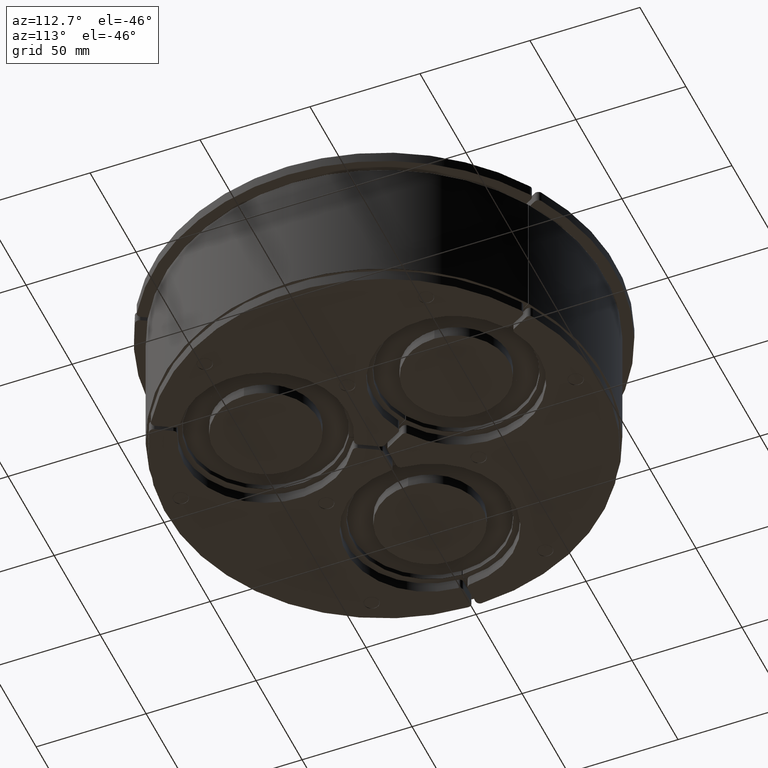
[diagram: clean part render]
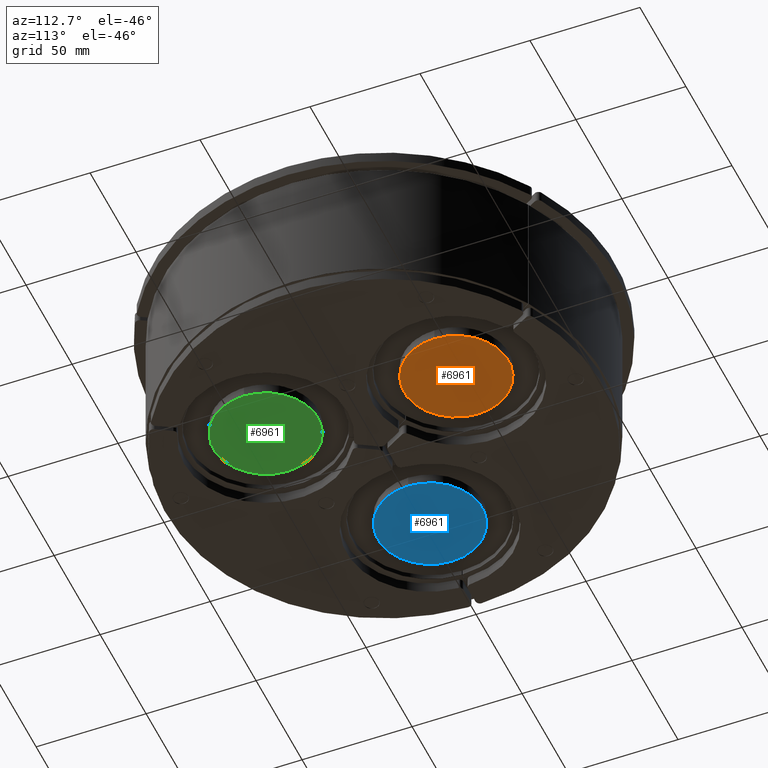
[diagram: same view with three faces highlighted in distinct colors, each labeled with its STEP entity id]
A machine part, auxiliary view with three faces highlighted in distinct colors.
Their STEP definitions:

[orange] entity #6961 — the highlighted planar face has unit normal (0, -0, 1).
#6932=CARTESIAN_POINT('',(23.800000000000004,2.914659E-015,0.0));
#6933=VERTEX_POINT('',#6932);
#6934=CARTESIAN_POINT('',(0.0,0.0,0.0));
#6935=DIRECTION('',(0.0,0.0,-1.0));
#6936=DIRECTION('',(-1.0,0.0,0.0));
#6937=AXIS2_PLACEMENT_3D('',#6934,#6935,#6936);
#6938=CIRCLE('',#6937,23.800000000000004);
#6939=EDGE_CURVE('',#6933,#6933,#6938,.T.);
#6953=CARTESIAN_POINT('',(-1.486836E-015,6.219737E-016,0.0));
#6954=DIRECTION('',(0.0,0.0,1.0));
#6955=DIRECTION('',(1.0,0.0,0.0));
#6956=AXIS2_PLACEMENT_3D('',#6953,#6954,#6955);
#6957=PLANE('',#6956);
#6958=ORIENTED_EDGE('',*,*,#6939,.T.);
#6959=EDGE_LOOP('',(#6958));
#6960=FACE_OUTER_BOUND('',#6959,.T.);
#6961=ADVANCED_FACE('',(#6960),#6957,.F.);

[blue] entity #6961 — the highlighted planar face has unit normal (0, 0, 1).
#6932=CARTESIAN_POINT('',(23.800000000000004,2.914659E-015,0.0));
#6933=VERTEX_POINT('',#6932);
#6934=CARTESIAN_POINT('',(0.0,0.0,0.0));
#6935=DIRECTION('',(0.0,0.0,-1.0));
#6936=DIRECTION('',(-1.0,0.0,0.0));
#6937=AXIS2_PLACEMENT_3D('',#6934,#6935,#6936);
#6938=CIRCLE('',#6937,23.800000000000004);
#6939=EDGE_CURVE('',#6933,#6933,#6938,.T.);
#6953=CARTESIAN_POINT('',(-1.486836E-015,6.219737E-016,0.0));
#6954=DIRECTION('',(0.0,0.0,1.0));
#6955=DIRECTION('',(1.0,0.0,0.0));
#6956=AXIS2_PLACEMENT_3D('',#6953,#6954,#6955);
#6957=PLANE('',#6956);
#6958=ORIENTED_EDGE('',*,*,#6939,.T.);
#6959=EDGE_LOOP('',(#6958));
#6960=FACE_OUTER_BOUND('',#6959,.T.);
#6961=ADVANCED_FACE('',(#6960),#6957,.F.);

[green] entity #6961 — the highlighted planar face has unit normal (0, -0, 1).
#6932=CARTESIAN_POINT('',(23.800000000000004,2.914659E-015,0.0));
#6933=VERTEX_POINT('',#6932);
#6934=CARTESIAN_POINT('',(0.0,0.0,0.0));
#6935=DIRECTION('',(0.0,0.0,-1.0));
#6936=DIRECTION('',(-1.0,0.0,0.0));
#6937=AXIS2_PLACEMENT_3D('',#6934,#6935,#6936);
#6938=CIRCLE('',#6937,23.800000000000004);
#6939=EDGE_CURVE('',#6933,#6933,#6938,.T.);
#6953=CARTESIAN_POINT('',(-1.486836E-015,6.219737E-016,0.0));
#6954=DIRECTION('',(0.0,0.0,1.0));
#6955=DIRECTION('',(1.0,0.0,0.0));
#6956=AXIS2_PLACEMENT_3D('',#6953,#6954,#6955);
#6957=PLANE('',#6956);
#6958=ORIENTED_EDGE('',*,*,#6939,.T.);
#6959=EDGE_LOOP('',(#6958));
#6960=FACE_OUTER_BOUND('',#6959,.T.);
#6961=ADVANCED_FACE('',(#6960),#6957,.F.);